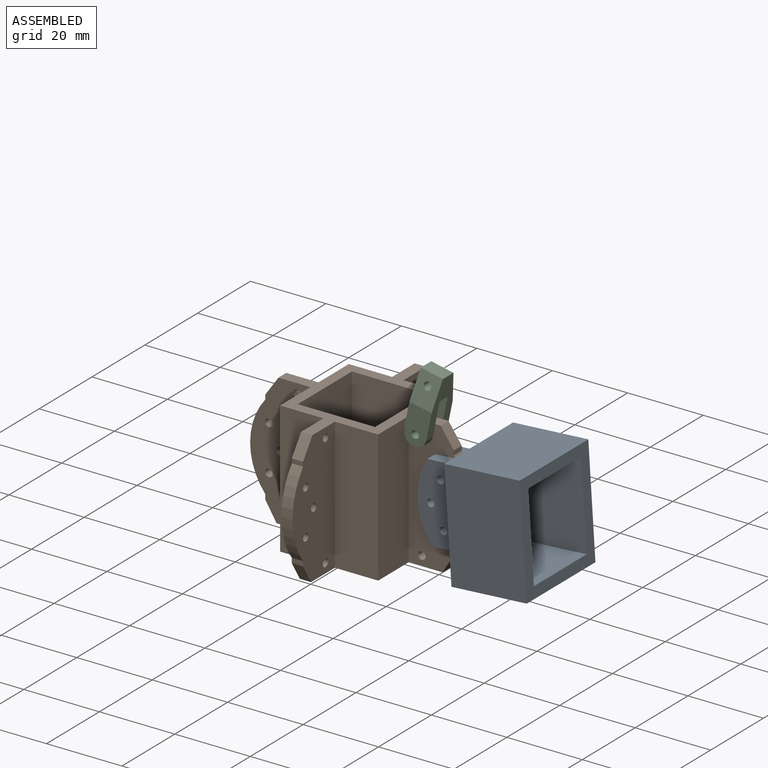
[diagram: assembled view]
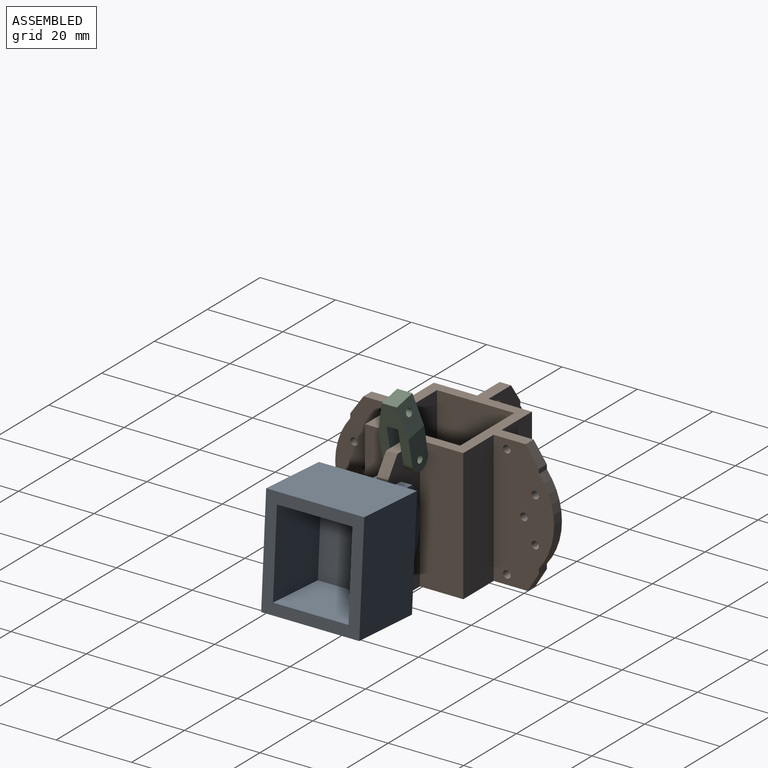
[diagram: assembled view, second angle]
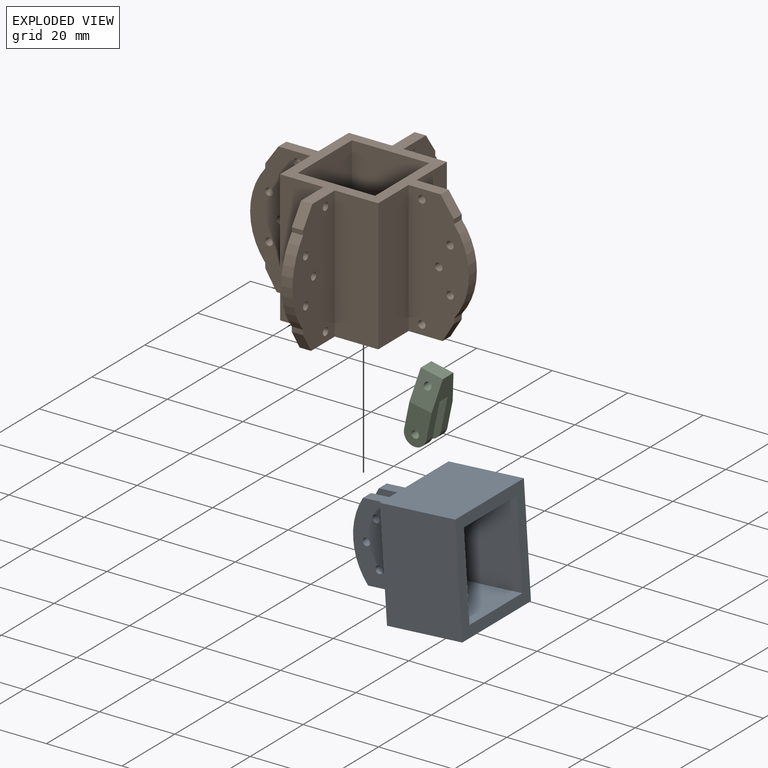
[diagram: exploded view]
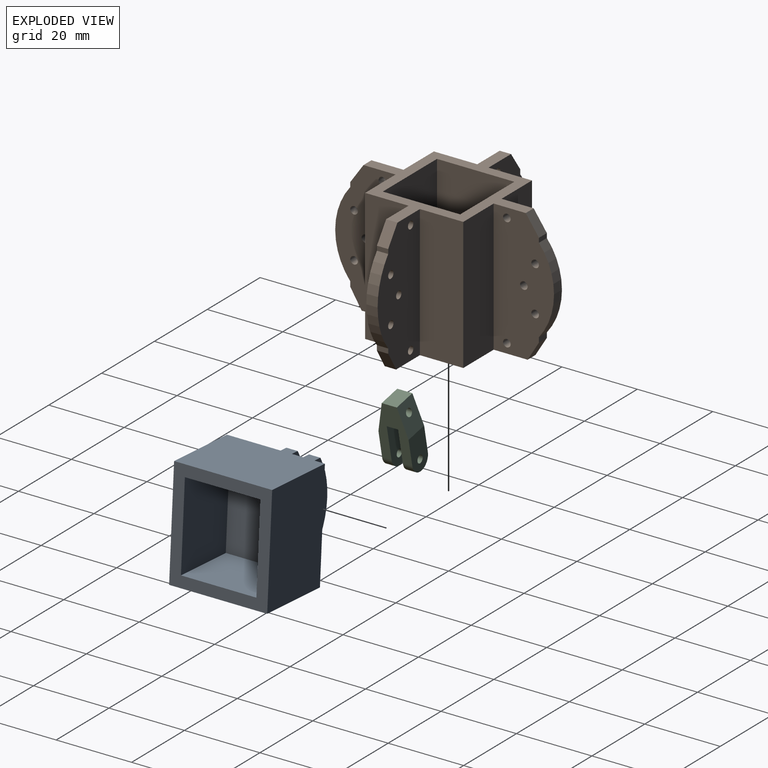
[diagram: exploded view, second angle]
ASSEMBLY  parts=3 mates=2
PART A: 27 faces, bbox 34x26x29 mm
  f0: plane 20.7x14mm, normal (0,-1,0), area 258.7mm2, adj f2,f3,f4,f5,f6,f7,f8
  f1: plane 20.7x14mm, normal (0,1,0), area 258.7mm2, adj f2,f3,f4,f5,f6,f7,f8
  f2: cylinder r=18mm len=20.7mm, axis (0,1,0), area 66.2mm2, adj f0,f1,f3,f4
  f3: plane 10.73x3mm, normal (0,0,1), area 32.2mm2, adj f0,f1,f2,f8
  f4: plane 10.73x3mm, normal (0,0,-1), area 32.2mm2, adj f0,f1,f2,f8
  f5: cylinder r=1mm len=3mm, axis (0,-1,0), area 18.8mm2, adj f0,f1
  f6: cylinder r=1mm len=3mm, axis (0,-1,0), area 18.8mm2, adj f0,f1
  f7: cylinder r=1mm len=3mm, axis (0,-1,0), area 18.8mm2, adj f0,f1
  f8: plane 29x26mm, normal (1,0,0), area 629.8mm2, adj f0,f1,f3,f4,f9,f10,f12,f13
  f9: plane 20.7x14mm, normal (0,1,0), area 258.7mm2, adj f8,f11,f12,f13,f14,f15,f16
  f10: plane 20.7x14mm, normal (0,-1,0), area 258.7mm2, adj f8,f11,f12,f13,f14,f15,f16
  f11: cylinder r=18mm len=20.7mm, axis (0,-1,0), area 66.2mm2, adj f9,f10,f12,f13
  f12: plane 10.73x3mm, normal (0,0,1), area 32.2mm2, adj f8,f9,f10,f11
  f13: plane 10.73x3mm, normal (0,0,-1), area 32.2mm2, adj f8,f9,f10,f11
  f14: cylinder r=1mm len=3mm, axis (0,1,0), area 18.8mm2, adj f9,f10
  f15: cylinder r=1mm len=3mm, axis (0,1,0), area 18.8mm2, adj f9,f10
  f16: cylinder r=1mm len=3mm, axis (0,1,0), area 18.8mm2, adj f9,f10
  f17: plane 20x17mm, normal (0,0,-1), area 340mm2, adj f18,f24,f25,f26
  f18: plane 23x17mm, normal (0,1,0), area 391mm2, adj f17,f19,f25,f26
  f19: plane 20x17mm, normal (0,0,1), area 340mm2, adj f18,f24,f25,f26
  f20: plane 29x20mm, normal (0,-1,0), area 580mm2, adj f8,f21,f23,f25
  f21: plane 26x20mm, normal (0,0,1), area 520mm2, adj f8,f20,f22,f25
  f22: plane 29x20mm, normal (0,1,0), area 580mm2, adj f8,f21,f23,f25
  f23: plane 26x20mm, normal (0,0,-1), area 520mm2, adj f8,f20,f22,f25
  f24: plane 23x17mm, normal (0,-1,0), area 391mm2, adj f17,f19,f25,f26
  f25: plane 29x26mm, normal (-1,0,0), area 294mm2, adj f17,f18,f19,f20,f21,f22,f23,f24
  f26: plane 23x20mm, normal (-1,0,0), area 460mm2, adj f17,f18,f19,f24
PART B: 62 faces, bbox 58x58x35 mm
  f0: plane 44x44mm, normal (0,0,-1), area 363.7mm2, adj f10,f11,f12,f21,f22,f23,f32,f33
  f1: plane 3x1.29mm, normal (0,-1,0), area 3.9mm2, adj f2,f10,f11,f60
  f2: cylinder r=18mm len=22.63mm, axis (1,0,0), area 73.4mm2, adj f1,f3,f10,f11
  f3: plane 3x1.19mm, normal (0,-1,0), area 3.6mm2, adj f2,f10,f11,f57
  f4: cylinder r=1mm len=3mm, axis (1,0,0), area 18.8mm2, adj f10,f11
  f5: cylinder r=1mm len=3mm, axis (1,0,0), area 18.8mm2, adj f10,f11
  f6: cylinder r=1mm len=3mm, axis (1,0,0), area 18.8mm2, adj f10,f11
  f7: cylinder r=1mm len=3mm, axis (1,0,0), area 18.8mm2, adj f10,f11
  f8: cylinder r=1mm len=3mm, axis (1,0,0), area 18.8mm2, adj f10,f11
  f9: plane 43x43mm, normal (0,0,1), area 357.7mm2, adj f10,f11,f12,f21,f22,f23,f32,f33
  f10: plane 35x16mm, normal (-1,0,0), area 450mm2, adj f0,f1,f2,f3,f4,f5,f6,f7
  f11: plane 35x16mm, normal (1,0,0), area 450mm2, adj f0,f1,f2,f3,f4,f5,f6,f7
  f12: plane 35x11.5mm, normal (0,-1,0), area 402.5mm2, adj f0,f9,f11,f47
  f13: plane 3x1.29mm, normal (1,0,0), area 3.9mm2, adj f14,f21,f22,f59
  f14: cylinder r=18mm len=22.63mm, axis (0,1,0), area 73.4mm2, adj f13,f15,f21,f22
  f15: plane 3x1.19mm, normal (1,0,0), area 3.6mm2, adj f14,f21,f22,f54
  f16: cylinder r=1mm len=3mm, axis (0,1,0), area 18.8mm2, adj f21,f22
  f17: cylinder r=1mm len=3mm, axis (0,1,0), area 18.8mm2, adj f21,f22
  f18: cylinder r=1mm len=3mm, axis (0,1,0), area 18.8mm2, adj f21,f22
  f19: cylinder r=1mm len=3mm, axis (0,1,0), area 18.8mm2, adj f21,f22
  f20: cylinder r=1mm len=3mm, axis (0,1,0), area 18.8mm2, adj f21,f22
  f21: plane 35x16mm, normal (0,-1,0), area 450mm2, adj f0,f9,f13,f14,f15,f16,f17,f18
  f22: plane 35x16mm, normal (0,1,0), area 450mm2, adj f0,f9,f13,f14,f15,f16,f17,f18
  f23: plane 35x11.5mm, normal (1,0,0), area 402.5mm2, adj f0,f9,f22,f45
  f24: plane 3x1.29mm, normal (-1,0,0), area 3.9mm2, adj f25,f32,f33,f61
  f25: cylinder r=18mm len=22.63mm, axis (0,-1,0), area 73.4mm2, adj f24,f26,f32,f33
  f26: plane 3x1.19mm, normal (-1,0,0), area 3.6mm2, adj f25,f32,f33,f56
  f27: cylinder r=1mm len=3mm, axis (0,-1,0), area 18.8mm2, adj f32,f33
  f28: cylinder r=1mm len=3mm, axis (0,-1,0), area 18.8mm2, adj f32,f33
  f29: cylinder r=1mm len=3mm, axis (0,-1,0), area 18.8mm2, adj f32,f33
  f30: cylinder r=1mm len=3mm, axis (0,-1,0), area 18.8mm2, adj f32,f33
  f31: cylinder r=1mm len=3mm, axis (0,-1,0), area 18.8mm2, adj f32,f33
  f32: plane 35x16mm, normal (0,1,0), area 450mm2, adj f0,f9,f24,f25,f26,f27,f28,f29
  f33: plane 35x16mm, normal (0,-1,0), area 450mm2, adj f0,f9,f24,f25,f26,f27,f28,f29
  f34: plane 35x11.5mm, normal (-1,0,0), area 402.5mm2, adj f0,f9,f32,f46
  f35: plane 3x1.29mm, normal (0,1,0), area 3.9mm2, adj f36,f43,f44,f58
  f36: cylinder r=18mm len=22.63mm, axis (-1,0,0), area 73.4mm2, adj f35,f37,f43,f44
  f37: plane 3x1.19mm, normal (0,1,0), area 3.6mm2, adj f36,f43,f44,f55
  f38: cylinder r=1mm len=3mm, axis (-1,0,0), area 18.8mm2, adj f43,f44
  f39: cylinder r=1mm len=3mm, axis (-1,0,0), area 18.8mm2, adj f43,f44
  f40: cylinder r=1mm len=3mm, axis (-1,0,0), area 18.8mm2, adj f43,f44
  f41: cylinder r=1mm len=3mm, axis (-1,0,0), area 18.8mm2, adj f43,f44
  f42: cylinder r=1mm len=3mm, axis (-1,0,0), area 18.8mm2, adj f43,f44
  f43: plane 35x16mm, normal (1,0,0), area 450mm2, adj f0,f9,f35,f36,f37,f38,f39,f40
  f44: plane 35x16mm, normal (-1,0,0), area 450mm2, adj f0,f9,f35,f36,f37,f38,f39,f40
  f45: plane 35x11.5mm, normal (0,1,0), area 402.5mm2, adj f0,f9,f23,f43
  f46: plane 35x11.5mm, normal (0,1,0), area 402.5mm2, adj f0,f9,f34,f44
  f47: plane 35x11.5mm, normal (1,0,0), area 402.5mm2, adj f0,f9,f12,f21
  f48: plane 35x11.5mm, normal (0,-1,0), area 402.5mm2, adj f0,f9,f10,f53
  f49: plane 35x20.5mm, normal (0,1,0), area 717.5mm2, adj f0,f9,f50,f52
  f50: plane 35x20.5mm, normal (-1,0,0), area 717.5mm2, adj f0,f9,f49,f51
  f51: plane 35x20.5mm, normal (0,-1,0), area 717.5mm2, adj f0,f9,f50,f52
  f52: plane 35x20.5mm, normal (1,0,0), area 717.5mm2, adj f0,f9,f49,f51
  f53: plane 35x11.5mm, normal (-1,0,0), area 402.5mm2, adj f0,f9,f33,f48
  f54: plane 5x3.5mm, normal (0.82,0,0.57), area 18.3mm2, adj f9,f15,f21,f22
  f55: plane 5x3.5mm, normal (0,0.82,0.57), area 18.3mm2, adj f9,f37,f43,f44
  f56: plane 5x3.5mm, normal (-0.82,0,0.57), area 18.3mm2, adj f9,f26,f32,f33
  f57: plane 5x3.5mm, normal (0,-0.82,0.57), area 18.3mm2, adj f3,f9,f10,f11
  f58: plane 4.9x3mm, normal (0,0.85,-0.52), area 17.2mm2, adj f0,f35,f43,f44
  f59: plane 4.9x3mm, normal (0.85,0,-0.52), area 17.2mm2, adj f0,f13,f21,f22
  f60: plane 4.9x3mm, normal (0,-0.85,-0.52), area 17.2mm2, adj f0,f1,f10,f11
  f61: plane 4.9x3mm, normal (-0.85,0,-0.52), area 17.2mm2, adj f0,f24,f32,f33
PART C: 15 faces, bbox 6.1x8.1x18.1 mm
  f0: plane 15x8mm, normal (-1,0,0), area 77mm2, adj f3,f5,f7,f8,f9,f10,f11,f12
  f1: plane 15x8mm, normal (1,0,0), area 77mm2, adj f3,f5,f7,f8,f9,f10,f11,f12
  f2: cylinder r=1mm len=2.5mm, axis (0,1,0), area 15.7mm2, adj f8,f14
  f3: cylinder r=3mm len=6mm, axis (0,1,0), area 23.6mm2, adj f0,f1,f8,f14
  f4: cylinder r=1mm len=2.5mm, axis (0,1,0), area 15.7mm2, adj f7,f13
  f5: plane 6x4mm, normal (0,0,1), area 24mm2, adj f0,f1,f10,f11
  f6: cylinder r=1mm len=6mm, axis (0,1,0), area 34.6mm2, adj f10,f11
  f7: plane 10x6mm, normal (0,-1,0), area 53mm2, adj f0,f1,f4,f9,f11
  f8: plane 10x6mm, normal (0,1,0), area 53mm2, adj f0,f1,f2,f3,f10
  f9: cylinder r=3mm len=6mm, axis (0,1,0), area 23.6mm2, adj f0,f1,f7,f13
  f10: plane 8.11x6.11mm, normal (0,0.97,0.24), area 46.2mm2, adj f0,f1,f5,f6,f8
  f11: plane 8x6mm, normal (0,-0.97,0.24), area 46.2mm2, adj f0,f1,f5,f6,f7
  f12: plane 6x3mm, normal (0,0,-1), area 18mm2, adj f0,f1,f13,f14
  f13: plane 12x6mm, normal (0,1,0), area 65mm2, adj f0,f1,f4,f9,f12
  f14: plane 12x6mm, normal (0,-1,0), area 65mm2, adj f0,f1,f2,f3,f12
PLACE A rot(axis=(0.03,0,-1),180deg) t=(43.31,0,1.49)mm
PLACE B at identity fixed
PLACE C rot(axis=(0,1,0),11.6deg) t=(-26.23,0,3.2)mm
MATE revolute C.f2 <-> B.f16  axis (0,1,0) through (16.5,-1.5,-2.5)mm
MATE revolute A.f6 <-> B.f18  axis (0,1,0) through (21,-1.5,-17.5)mm
